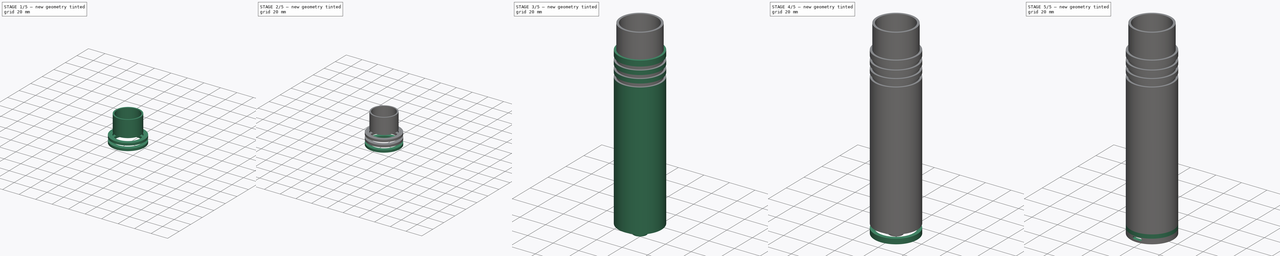
[diagram: build sequence overview — one tinted view per stage of 5, left to right]
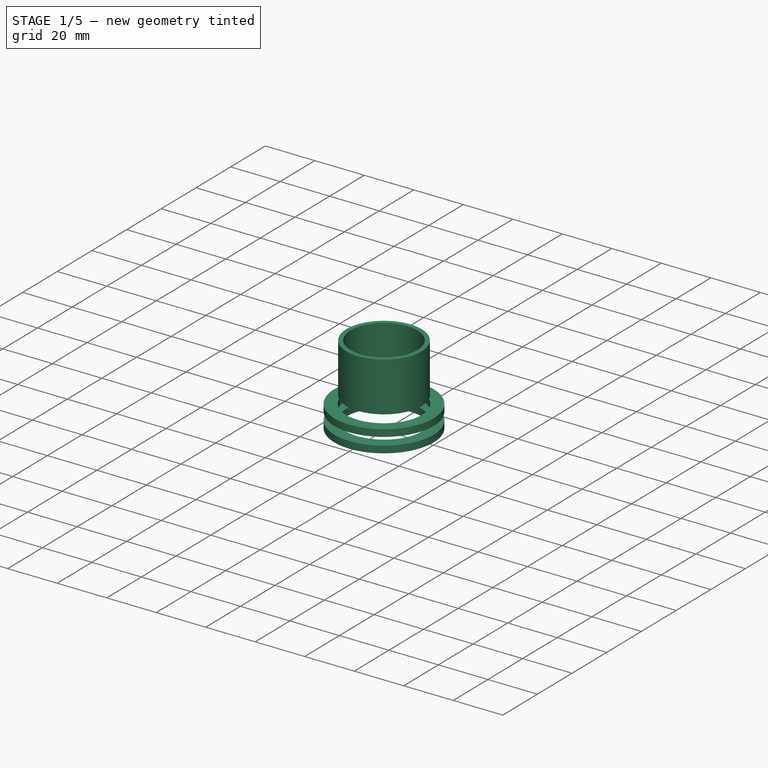
[diagram: stage 1 of 5 — iso view after this stage's code; geometry added in this stage tinted green]
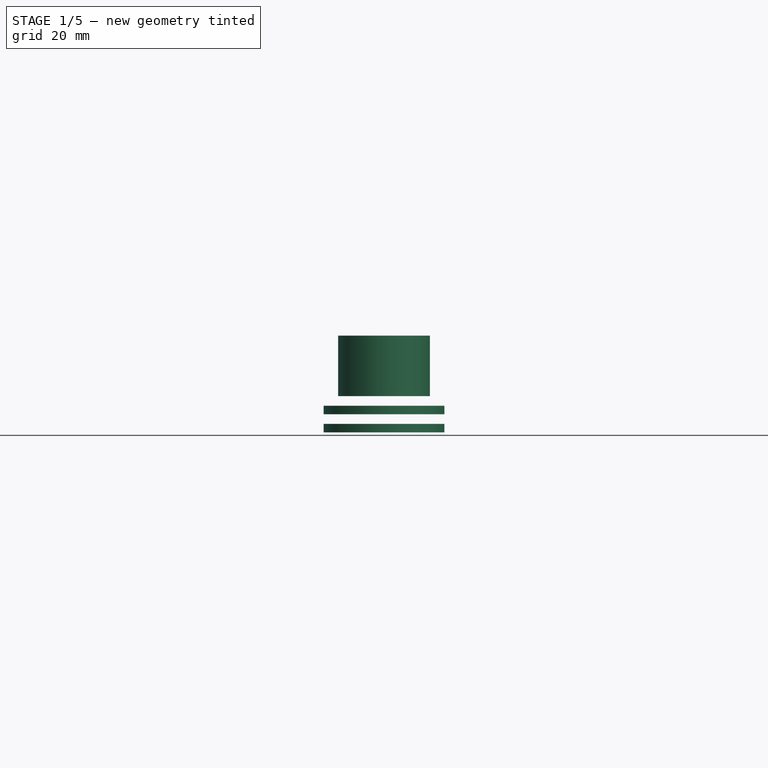
[diagram: stage 1 of 5 — front view after this stage's code; geometry added in this stage tinted green]
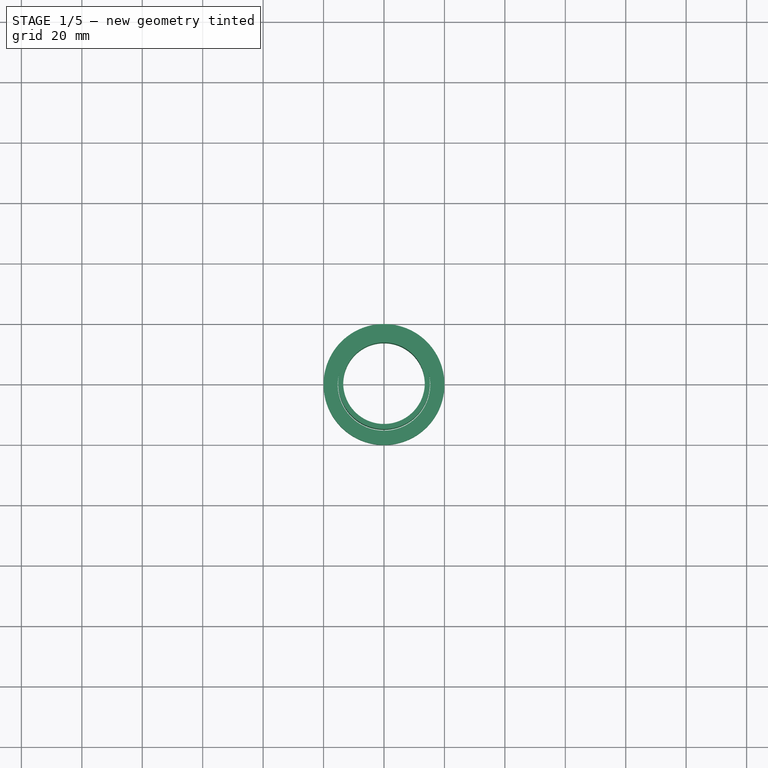
[diagram: stage 1 of 5 — top view after this stage's code; geometry added in this stage tinted green]
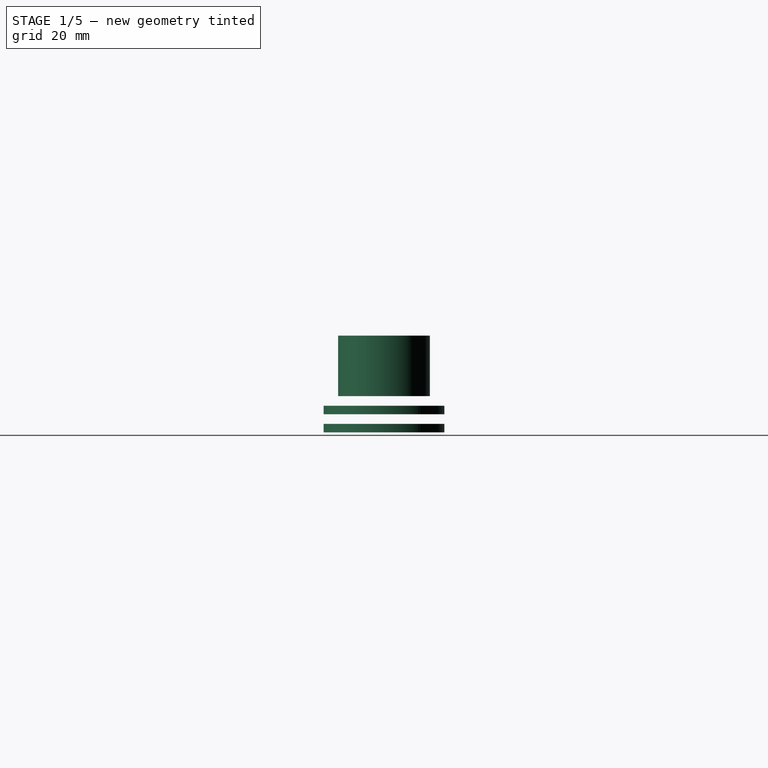
[diagram: stage 1 of 5 — right view after this stage's code; geometry added in this stage tinted green]
FCSTD DOCUMENT  (FreeCAD 0.15R4196 (Git))
Label: Akkugehaeuse
License: CC-BY 3.0
LicenseURL: http://creativecommons.org/licenses/by/3.0/
objects: Sketcher::SketchObject×9, PartDesign::Pad×8, Part::Cut×3, Part::MultiFuse×2, Part::Helix×1, Part::Sweep×1, Part::Cylinder×1, Part::Fuse×1
note: 34 computed .brp shape members not serialized (recipe doc carries the construction recipe); baked Part::Feature solids carry a one-line shape summary decoded from their .brp

FEATURE [Sketcher::SketchObject] Sketch007
  Placement = pos=(0,0,123) rot=(0,0,1;0rad)
  sketch-geometry (2):
    g0: Circle CenterX=0 CenterY=0 CenterZ=0 NormalX=0 NormalY=0 NormalZ=1 Radius=20
    g1: Circle CenterX=0 CenterY=0 CenterZ=0 NormalX=0 NormalY=0 NormalZ=1 Radius=15.3
  constraints (4):
    c: Radius(g0) = 20
    c: Coincident(g1,g0)
    c: Radius(g1) = 15.3
    c: Coincident(g-1,g0)
FEATURE [PartDesign::Pad] Pad005  label="ORing Nut 001"
  Length = 2.8
  Length2 = 100
  Placement = pos=(0,0,123) rot=(0,0,1;0rad)
  Sketch = -> Sketch007
  Type = 0
FEATURE [Sketcher::SketchObject] Sketch008
  Placement = pos=(0,0,117) rot=(0,0,1;0rad)
  sketch-geometry (2):
    g0: Circle CenterX=0 CenterY=0 CenterZ=0 NormalX=0 NormalY=0 NormalZ=1 Radius=20
    g1: Circle CenterX=0 CenterY=0 CenterZ=0 NormalX=0 NormalY=0 NormalZ=1 Radius=15.3
  constraints (4):
    c: Radius(g0) = 20
    c: Coincident(g1,g0)
    c: Radius(g1) = 15.3
    c: Coincident(g-1,g0)
FEATURE [PartDesign::Pad] Pad006  label="ORing Nut 002"
  Length = 2.8
  Length2 = 100
  Placement = pos=(0,0,117) rot=(0,0,1;0rad)
  Sketch = -> Sketch008
  Type = 0
FEATURE [Sketcher::SketchObject] Sketch010
  Placement = pos=(0,0,129) rot=(0,0,1;0rad)
  sketch-geometry (2):
    g0: Circle CenterX=0 CenterY=0 CenterZ=0 NormalX=0 NormalY=0 NormalZ=1 Radius=15.19
    g1: Circle CenterX=0 CenterY=0 CenterZ=0 NormalX=0 NormalY=0 NormalZ=1 Radius=13.5
  constraints (4):
    c: Coincident(g1,g0)
    c: Radius(g0) = 15.19
    c: Radius(g1) = 13.5
    c: Coincident(g0,g-1)
FEATURE [PartDesign::Pad] Pad008
  Length = 20
  Length2 = 100
  Placement = pos=(0,0,129) rot=(0,0,1;0rad)
  Sketch = -> Sketch010
  Type = 0
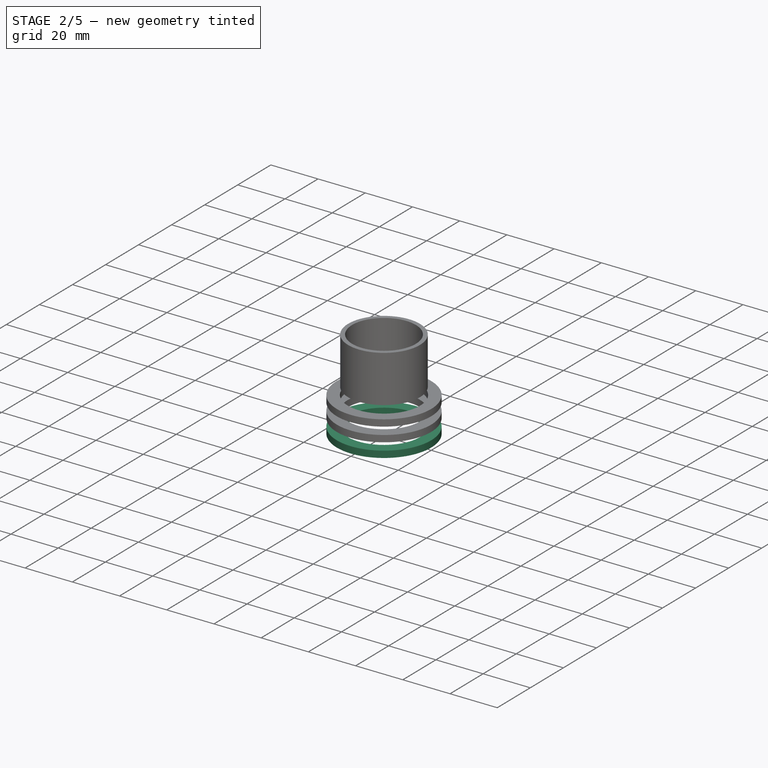
[diagram: stage 2 of 5 — iso view after this stage's code; geometry added in this stage tinted green]
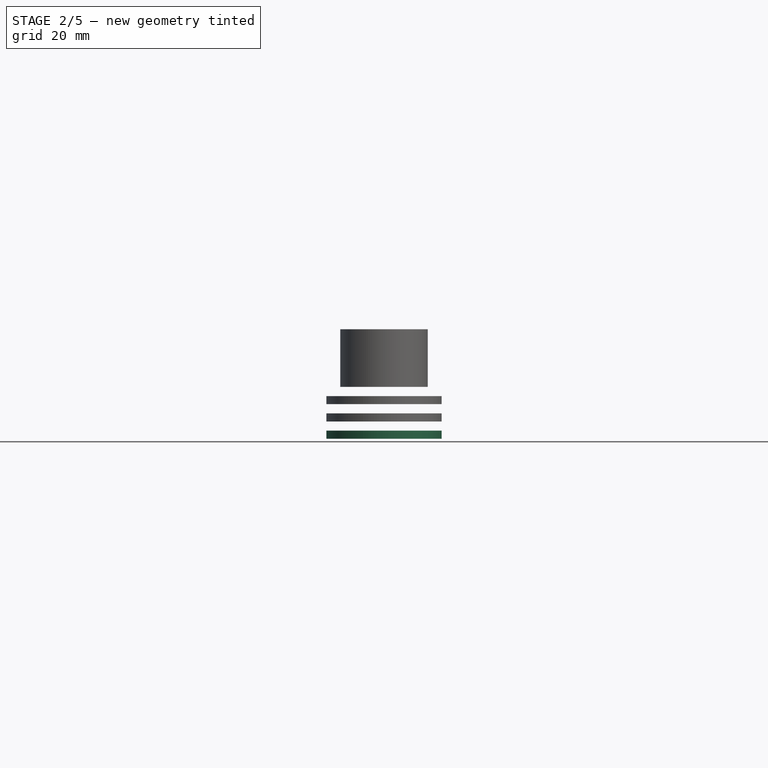
[diagram: stage 2 of 5 — front view after this stage's code; geometry added in this stage tinted green]
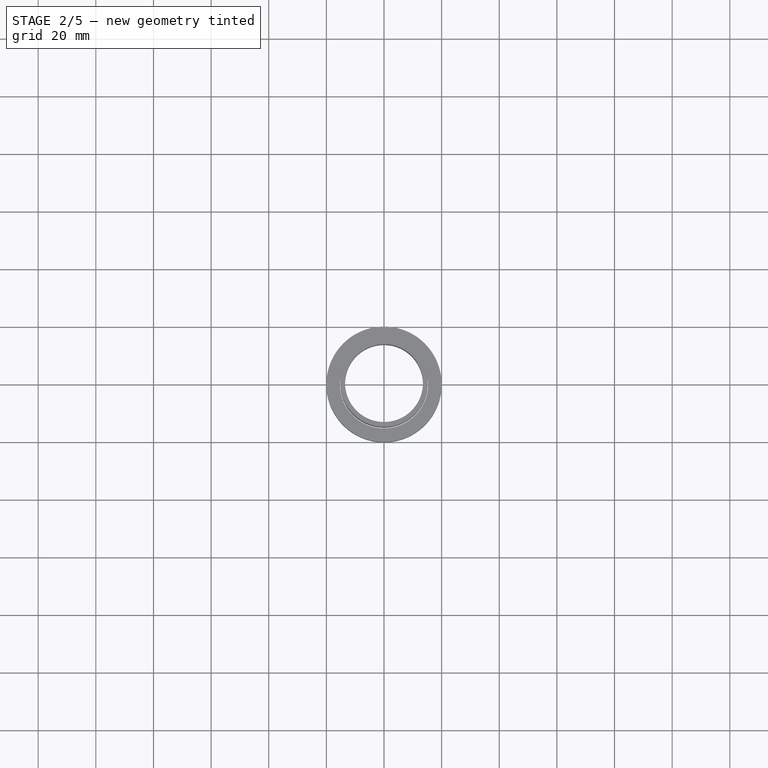
[diagram: stage 2 of 5 — top view after this stage's code; geometry added in this stage tinted green]
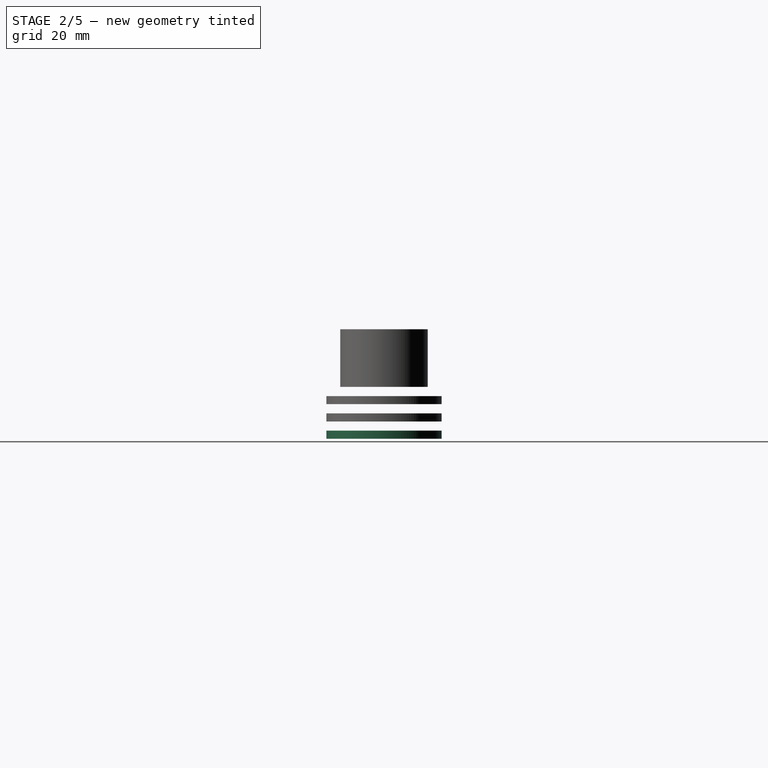
[diagram: stage 2 of 5 — right view after this stage's code; geometry added in this stage tinted green]
FEATURE [Sketcher::SketchObject] Sketch009
  Placement = pos=(0,0,111) rot=(0,0,1;0rad)
  sketch-geometry (2):
    g0: Circle CenterX=0 CenterY=0 CenterZ=0 NormalX=0 NormalY=0 NormalZ=1 Radius=20
    g1: Circle CenterX=0 CenterY=0 CenterZ=0 NormalX=0 NormalY=0 NormalZ=1 Radius=15.3
  constraints (4):
    c: Radius(g0) = 20
    c: Coincident(g1,g0)
    c: Radius(g1) = 15.3
    c: Coincident(g-1,g0)
FEATURE [PartDesign::Pad] Pad007  label="ORing Nut 003"
  Length = 2.8
  Length2 = 100
  Placement = pos=(0,0,111) rot=(0,0,1;0rad)
  Sketch = -> Sketch009
  Type = 0
FEATURE [Part::MultiFuse] Fusion001
  Shapes = -> [Pad006,Pad005]
FEATURE [Part::MultiFuse] Fusion002  label="ORing Nuten"
  Shapes = -> [Pad007,Fusion001]
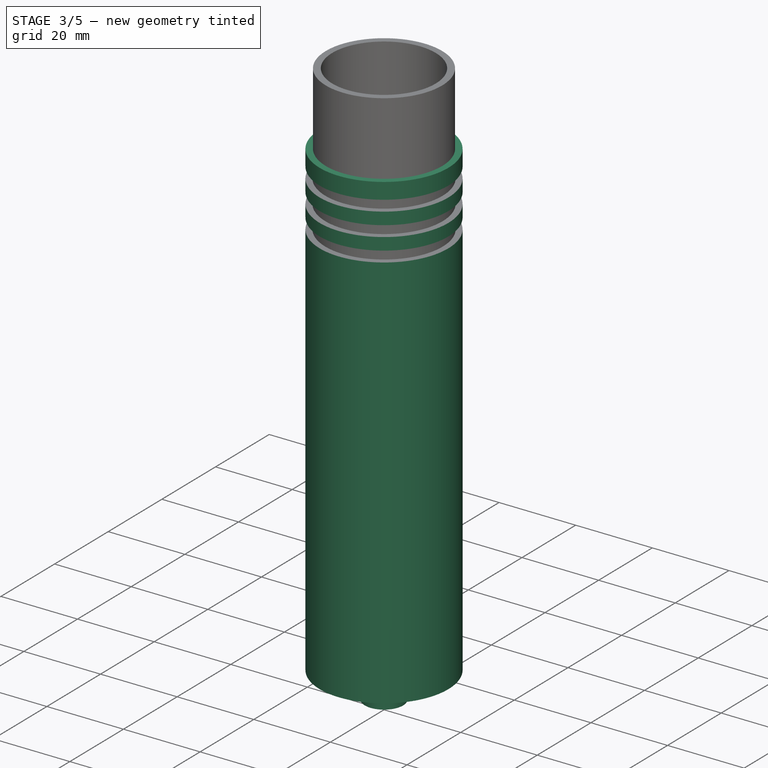
[diagram: stage 3 of 5 — iso view after this stage's code; geometry added in this stage tinted green]
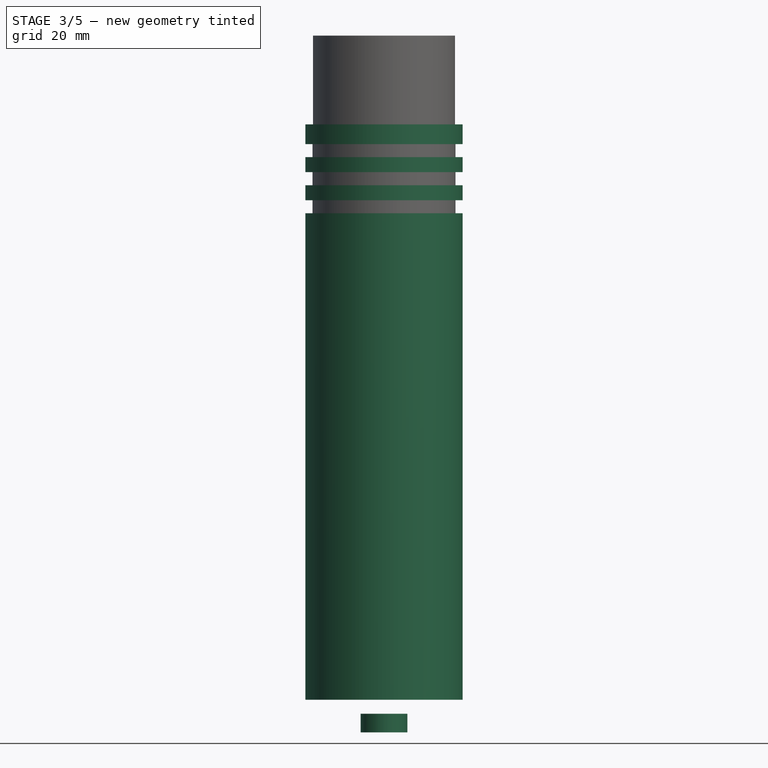
[diagram: stage 3 of 5 — front view after this stage's code; geometry added in this stage tinted green]
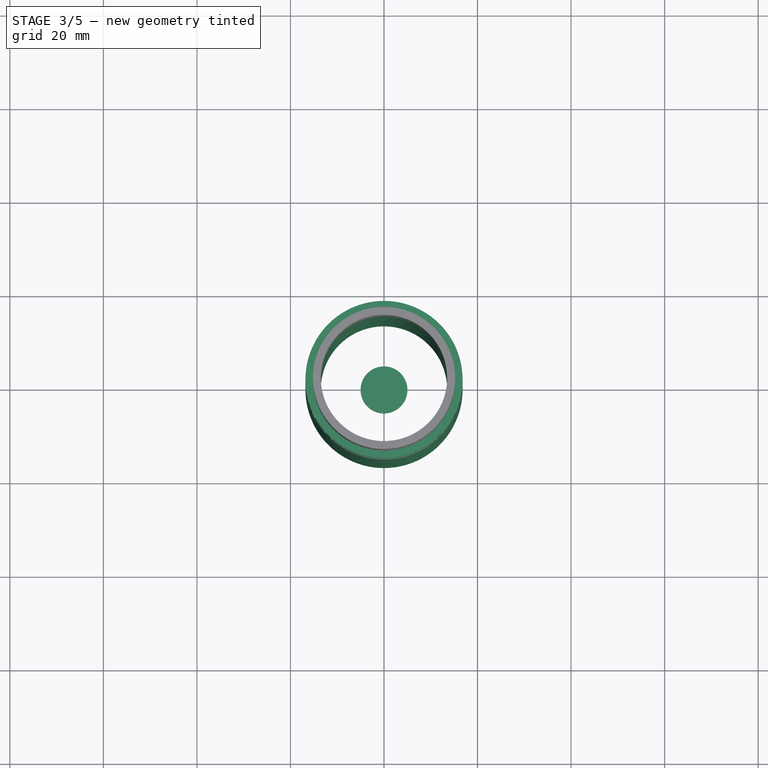
[diagram: stage 3 of 5 — top view after this stage's code; geometry added in this stage tinted green]
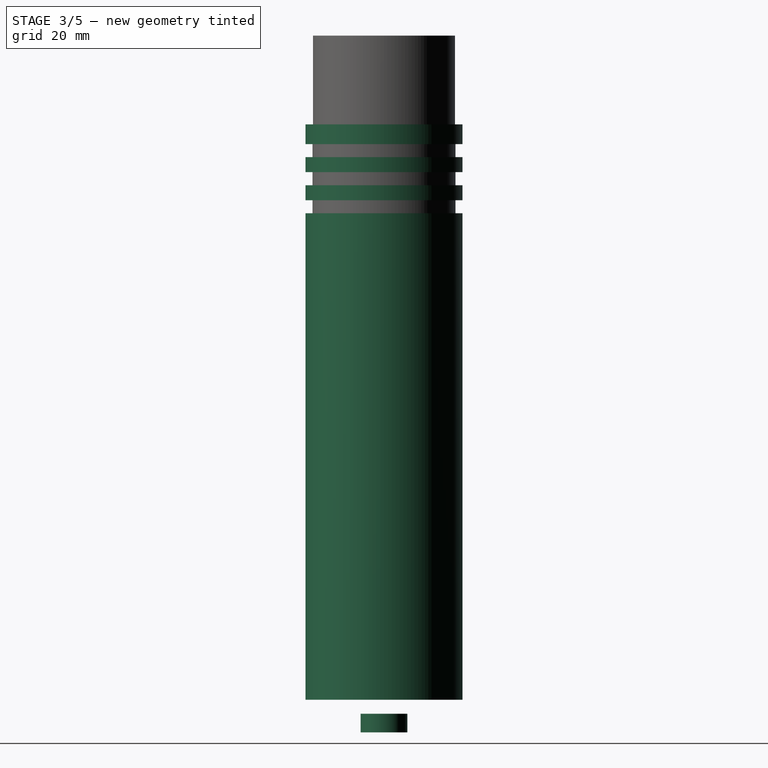
[diagram: stage 3 of 5 — right view after this stage's code; geometry added in this stage tinted green]
FEATURE [Sketcher::SketchObject] Sketch002
  Placement = pos=(0,0,7) rot=(0,0,1;0rad)
  sketch-geometry (2):
    g0: Circle CenterX=0 CenterY=0 CenterZ=0 NormalX=0 NormalY=0 NormalZ=1 Radius=16.8
    g1: Circle CenterX=0 CenterY=0 CenterZ=0 NormalX=0 NormalY=0 NormalZ=1 Radius=13.5
  constraints (4):
    c: Radius(g0) = 16.8
    c: Coincident(g1,g0)
    c: Radius(g1) = 13.5
    c: Coincident(g0,g-1)
FEATURE [PartDesign::Pad] Pad002  label="Rohr"
  Length = 123
  Length2 = 100
  Placement = pos=(0,0,7) rot=(0,0,1;0rad)
  Sketch = -> Sketch002
  Type = 0
FEATURE [Part::Cylinder] Cylinder
  Angle = 360
  Height = 4
  Radius = 5
FEATURE [Part::Cut] Cut002
  Base = -> Pad002
  Tool = -> Fusion002
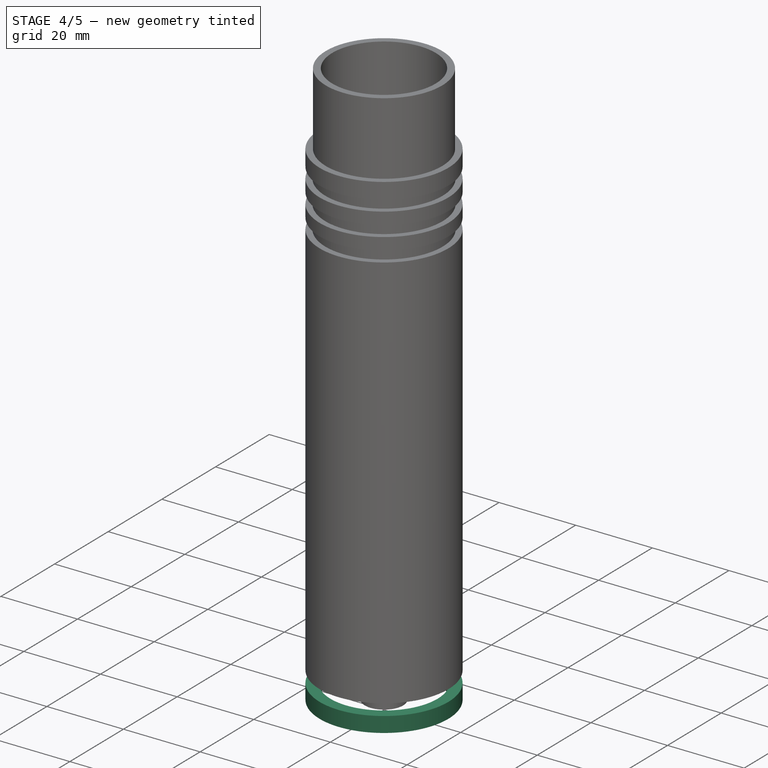
[diagram: stage 4 of 5 — iso view after this stage's code; geometry added in this stage tinted green]
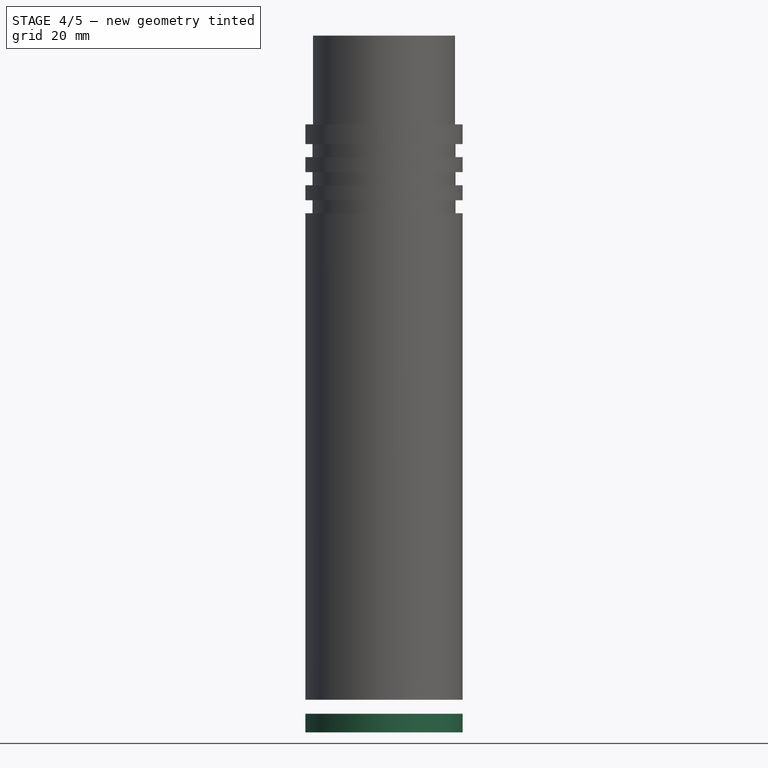
[diagram: stage 4 of 5 — front view after this stage's code; geometry added in this stage tinted green]
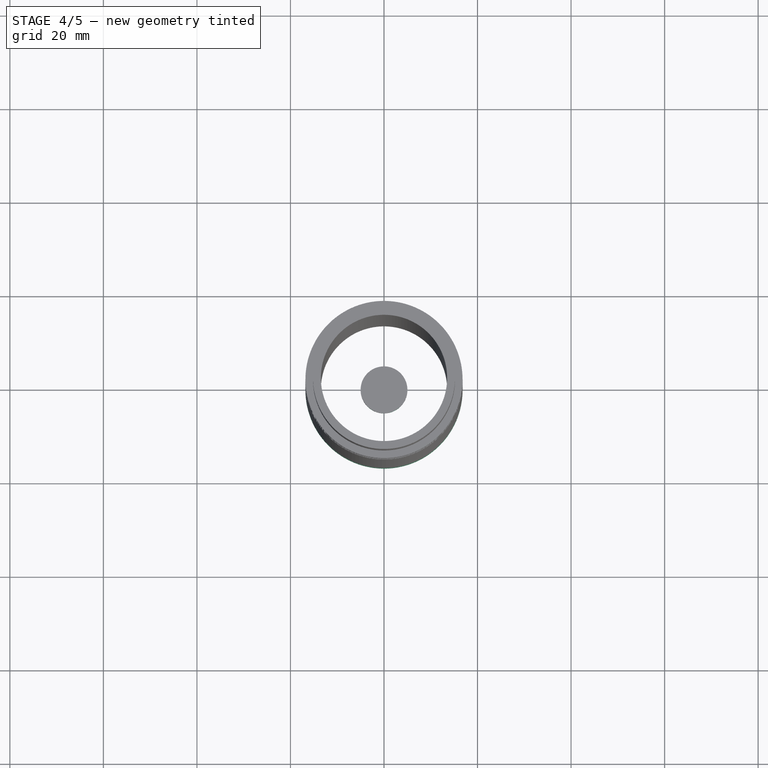
[diagram: stage 4 of 5 — top view after this stage's code; geometry added in this stage tinted green]
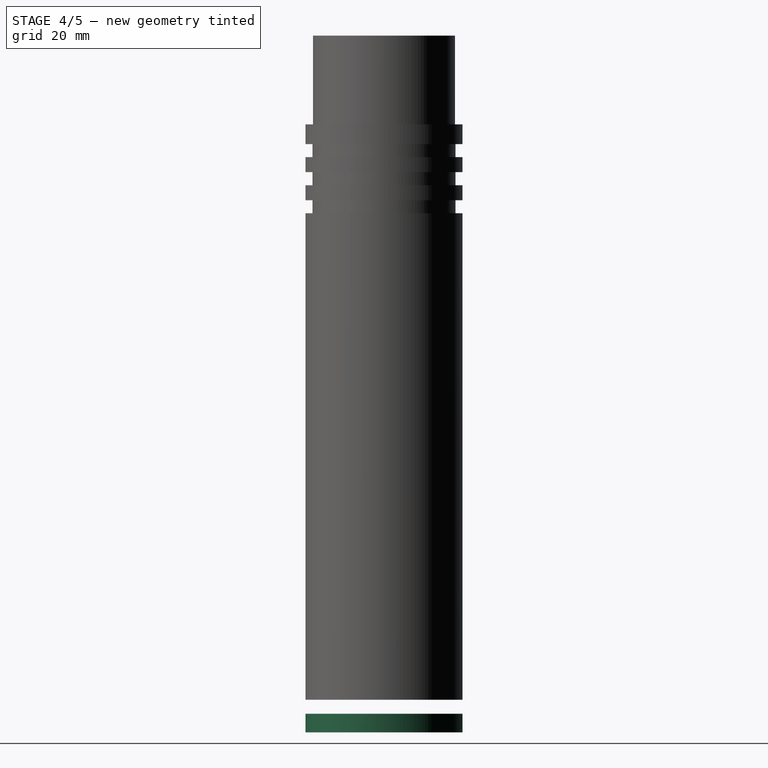
[diagram: stage 4 of 5 — right view after this stage's code; geometry added in this stage tinted green]
FEATURE [Sketcher::SketchObject] Sketch
  sketch-geometry (2):
    g0: Circle CenterX=0 CenterY=0 CenterZ=0 NormalX=0 NormalY=0 NormalZ=1 Radius=14
    g1: Circle CenterX=0 CenterY=0 CenterZ=0 NormalX=0 NormalY=0 NormalZ=1 Radius=16.8
  constraints (4):
    c: Coincident(g0,g-1)
    c: Radius(g0) = 14
    c: Coincident(g-1,g1)
    c: Radius(g1) = 16.8
FEATURE [PartDesign::Pad] Pad
  Length = 4
  Length2 = 100
  Sketch = -> Sketch
  Type = 0
FEATURE [Part::Helix] Helix
  Angle = 0
  Height = 18
  LocalCoord = 0
  Pitch = 1.5
  Radius = 15.19
  Style = 1
FEATURE [Sketcher::SketchObject] Sketch003
  Placement = pos=(0,0,0) rot=(0.57735,0.57735,0.57735;2.0944rad)
  sketch-geometry (8):
    g0: LineSegment StartX=15.19 StartY=0.75 StartZ=0 EndX=15.19 EndY=-0.75 EndZ=0
    g1: LineSegment [constr] StartX=15.19 StartY=-0.75 StartZ=0 EndX=16.489 EndY=0 EndZ=0
    g2: LineSegment [constr] StartX=16.489 StartY=0 StartZ=0 EndX=15.19 EndY=0.75 EndZ=0
    g3: GeomPoint [constr] X=16.3271 Y=0.0935 Z=0
    g4: GeomPoint [constr] X=16.3271 Y=-0.0935 Z=0
    g5: LineSegment StartX=15.19 StartY=-0.75 StartZ=0 EndX=16.3271 EndY=-0.0935 EndZ=0
    g6: LineSegment StartX=15.19 StartY=0.75 StartZ=0 EndX=16.3271 EndY=0.0935 EndZ=0
    g7: LineSegment StartX=16.3271 StartY=0.0935 StartZ=0 EndX=16.3271 EndY=-0.0935 EndZ=0
  constraints (19):
    c: Vertical(g0)
    c: Coincident(g0,g1)
    c: PointOnObject(g1,g-1)
    c: Coincident(g1,g2)
    c: Coincident(g2,g0)
    c: Equal(g2,g1)
    c: Angle(g2,g1) = 1.0472
    c: DistanceX(g-1,g0) = 15.19
    c: DistanceY(g0) = -1.5
    c: PointOnObject(g3,g2)
    c: PointOnObject(g4,g1)
    c: Distance(g4,g1) = 0.187
    c: Distance(g1,g3) = 0.187
    c: Coincident(g5,g0)
    c: Coincident(g5,g4)
    c: PointOnObject(g6,g2)
    c: Coincident(g7,g3)
    c: Coincident(g7,g4)
    c: Coincident(g6,g0)
FEATURE [Part::Sweep] Sweep  label="Gewinde M32x1,5 (DIN 13-5)"
  Frenet = true
  Placement = pos=(0,0,130) rot=(0,0,1;0rad)
  Sections = -> [Sketch003]
  Solid = true
  Spine = -> Helix [Edge1]
  Transition = 1
FEATURE [Sketcher::SketchObject] Sketch004
  Placement = pos=(0,20,1.5) rot=(-1,0,0;4.71239rad)
  sketch-geometry (4):
    g0: ArcOfCircle CenterX=-2.5 CenterY=1 CenterZ=0 NormalX=0 NormalY=0 NormalZ=1 Radius=1 StartAngle=1.5708 EndAngle=4.71239
    g1: ArcOfCircle CenterX=2.5 CenterY=1 CenterZ=0 NormalX=0 NormalY=0 NormalZ=1 Radius=1 StartAngle=4.71239 EndAngle=7.85398
    g2: LineSegment StartX=-2.5 StartY=1.2e-11 StartZ=0 EndX=2.5 EndY=1.2e-11 EndZ=0
    g3: LineSegment StartX=-2.5 StartY=2 StartZ=0 EndX=2.5 EndY=2 EndZ=0
  constraints (10):
    c: Tangent(g0,g3)
    c: Tangent(g0,g2)
    c: Tangent(g2,g1)
    c: Tangent(g3,g1)
    c: Horizontal(g2)
    c: Equal(g0,g1)
    c: DistanceX(g2) = 5
    c: Radius(g1) = 1
    c: PointOnObject(g0,g-1)
    c: DistanceX(g-1,g1) = 2.5
FEATURE [PartDesign::Pad] Pad003  label="Langloch Boltsnap"
  Length = 40
  Length2 = 100
  Placement = pos=(0,20,1.5) rot=(-1,0,0;4.71239rad)
  Sketch = -> Sketch004
  Type = 0
FEATURE [Part::Cut] Cut001
  Base = -> Cylinder
  Tool = -> Pad003
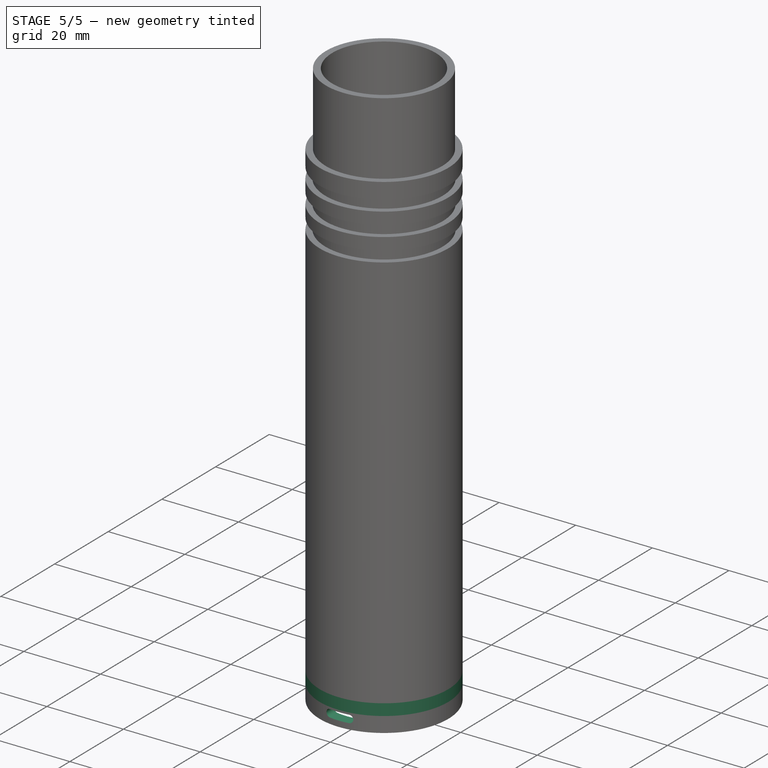
[diagram: stage 5 of 5 — iso view after this stage's code; geometry added in this stage tinted green]
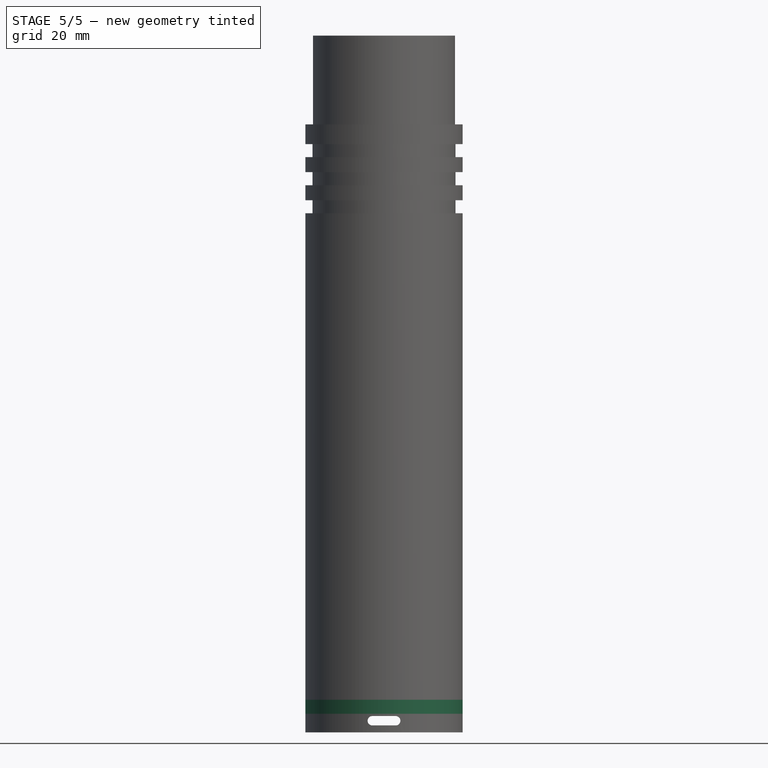
[diagram: stage 5 of 5 — front view after this stage's code; geometry added in this stage tinted green]
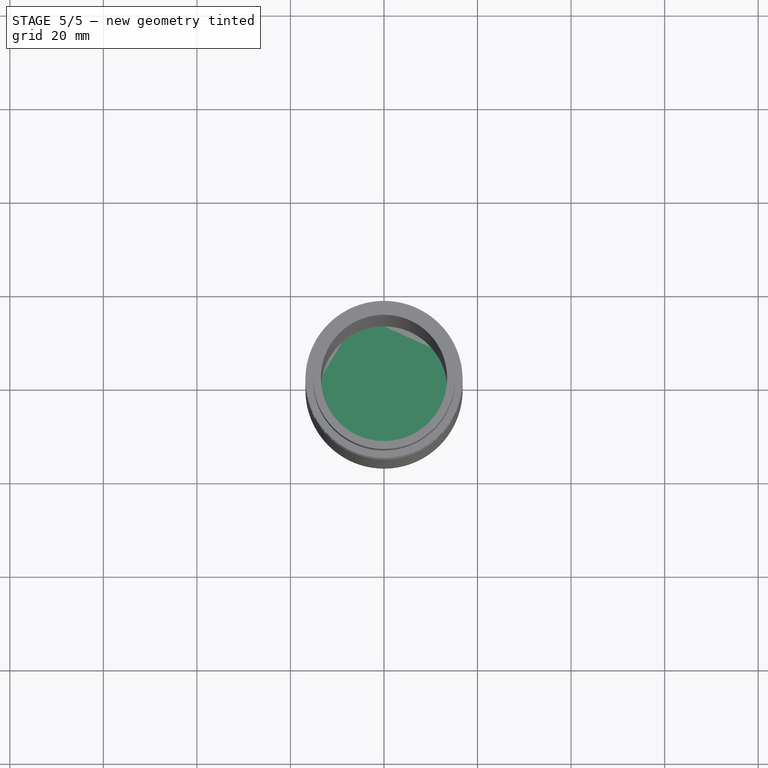
[diagram: stage 5 of 5 — top view after this stage's code; geometry added in this stage tinted green]
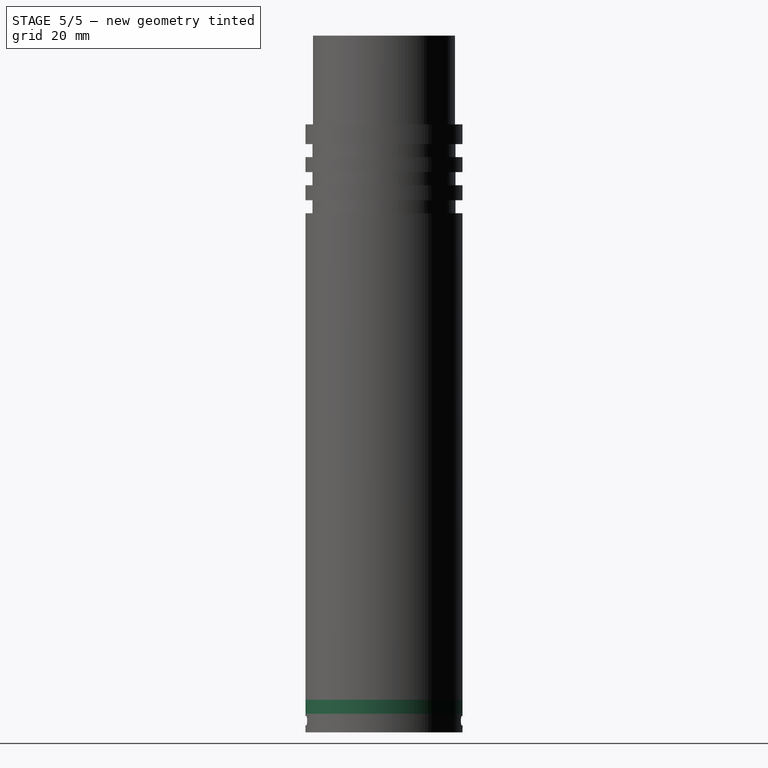
[diagram: stage 5 of 5 — right view after this stage's code; geometry added in this stage tinted green]
FEATURE [Sketcher::SketchObject] Sketch005
  Placement = pos=(0,0,4) rot=(0,0,1;0rad)
  sketch-geometry (1):
    g0: Circle CenterX=0 CenterY=0 CenterZ=0 NormalX=0 NormalY=0 NormalZ=1 Radius=16.8
  constraints (2):
    c: Coincident(g0,g-1)
    c: Radius(g0) = 16.8
FEATURE [PartDesign::Pad] Pad004  label="Boden"
  Length = 3
  Length2 = 100
  Placement = pos=(0,0,4) rot=(0,0,1;0rad)
  Sketch = -> Sketch005
  Type = 0
FEATURE [Part::Cut] Cut  label="Cut-Öse Boltsnap"
  Base = -> Pad
  Tool = -> Pad003
FEATURE [Part::Fuse] Fusion  label="Cut-Öse Boltsnap001"
  Base = -> Cut
  Tool = -> Cut001
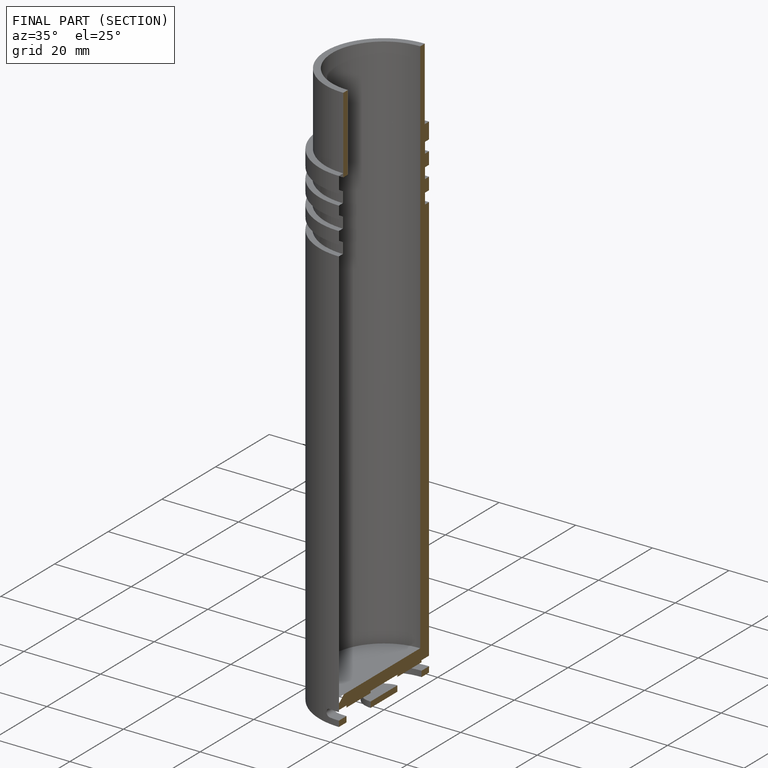
[diagram: finished part — half-section view (interior)]
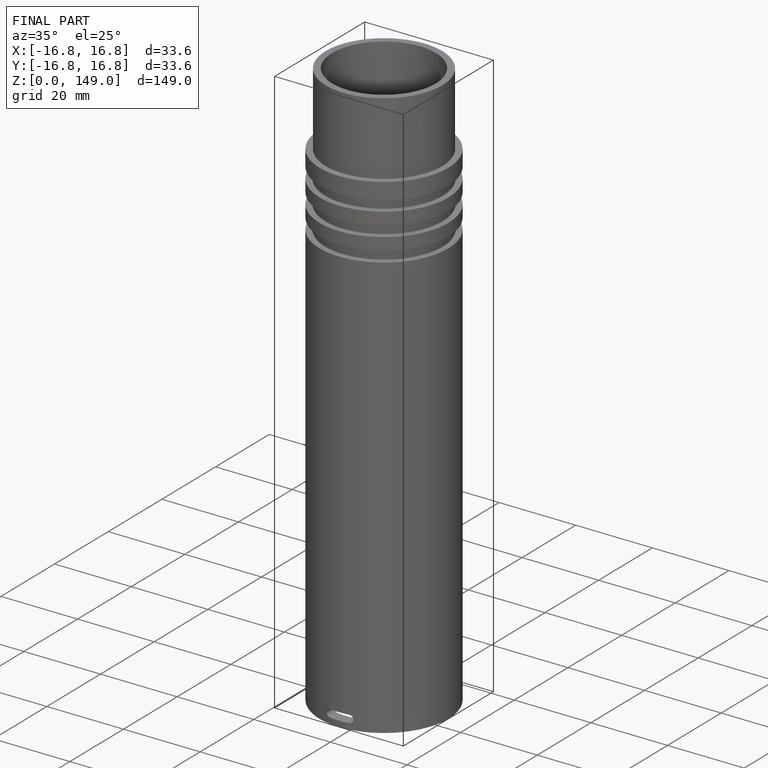
[diagram: finished part — iso view with bounding-box wireframe]
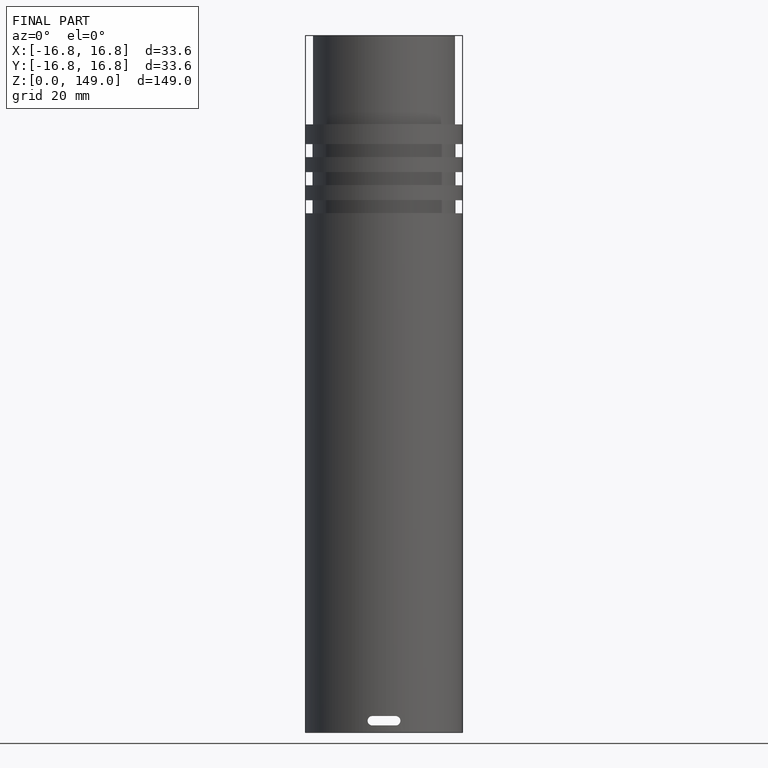
[diagram: finished part — front view with bounding-box wireframe]
